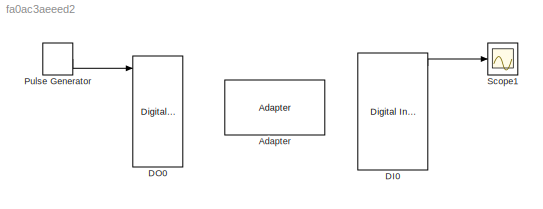
MODEL slx_fa0ac3aeeed2
KIND model
CONFIG AbsTol = auto
CONFIG EnableMultiTasking = off
CONFIG FixedStep = auto
CONFIG MaxStep = auto
CONFIG MinStep = auto
CONFIG RelTol = 1e-3
CONFIG SampleTimeConstraint = Unconstrained
CONFIG Solver = VariableStepAuto
CONFIG SolverName = VariableStepAuto
CONFIG StartTime = 0.0
CONFIG StopTime = 10.0
BLOCK [Reference] Adapter  REF=Rayannik/Adapter
  Ports = []
  SourceBlock = Rayannik/Adapter
BLOCK [Reference] DI0  REF=Rayannik/Digital Input
  Ports = [0, 8]
  Priority = 2
  SourceBlock = Rayannik/Digital Input
  SourceType = Digital Output
BLOCK [Reference] DO0  REF=Rayannik/Digital Output
  Ports = [8]
  Priority = 2
  SourceBlock = Rayannik/Digital Output
  SourceType = Digital Output
BLOCK [DiscretePulseGenerator] Pulse Generator
  Amplitude = 5
  Ports = [0, 1]
  PulseType = Time based
  PulseWidth = 50
BLOCK [Scope] Scope1
  NumInputPorts = 1
  Ports = [1]
  ScopeSpecificationString = Simulink.scopes.TimeScopeBlockCfg('CurrentConfiguration', extmgr.ConfigurationSet(extmgr.Configuration('Core','General UI',true),extmgr.Configuration('Core','Source UI',true),extmgr.Configuration('Sources','WiredSimulink',true),extmgr.Configuration('Visuals','Time Domain',true,'SerializedDisplays',{struct('MinYLimReal','-0.125','MaxYLimReal','1.125','YLabelReal','','MinYLimMag','0.00000','MaxYLimM...<+1342ch>
LINE DI0:1 -> Scope1:1
LINE Pulse Generator:1 -> DO0:1
